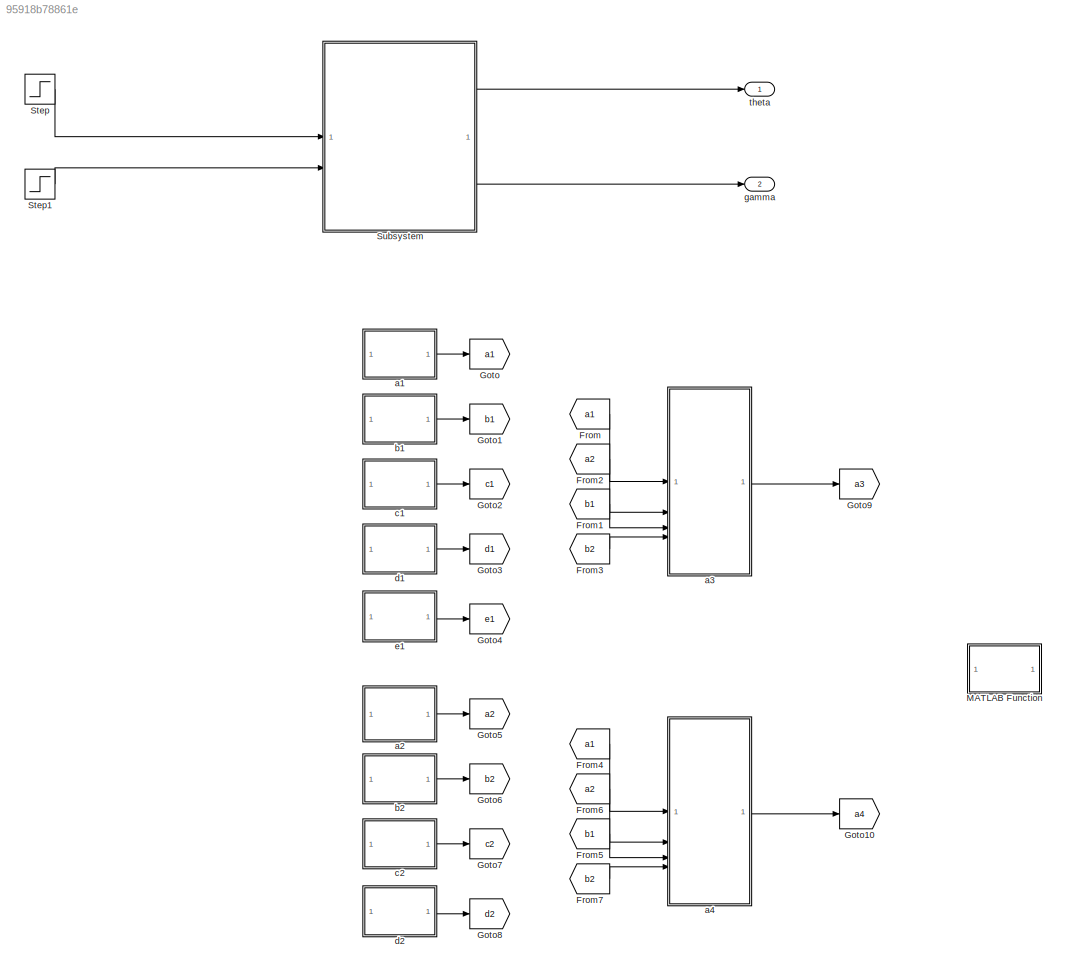
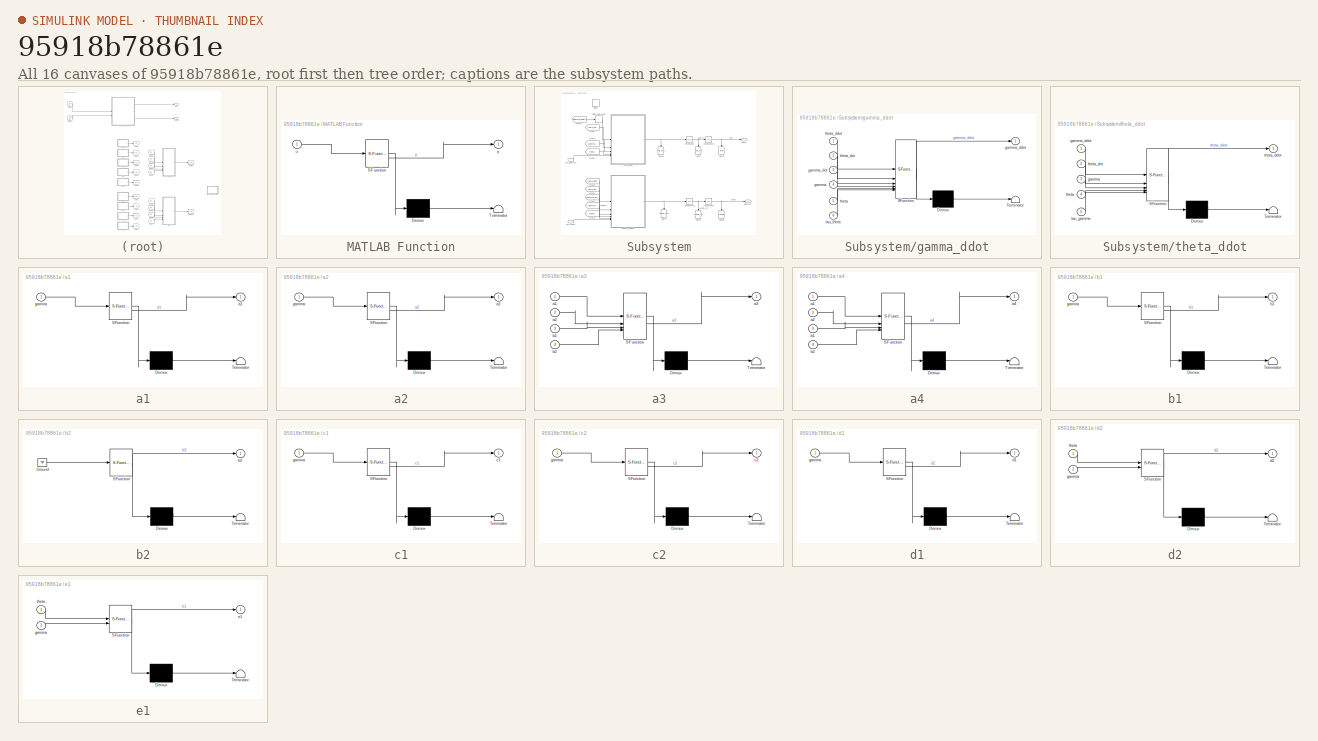
[diagram: thumbnail index - all 16 canvases of the model, root first then tree order]
MODEL slx_95918b78861e
KIND model
CONFIG AbsTol = auto
CONFIG EnableMultiTasking = off
CONFIG FixedStep = auto
CONFIG MaxStep = auto
CONFIG MinStep = auto
CONFIG RelTol = 1e-3
CONFIG SampleTimeConstraint = Unconstrained
CONFIG SolverName = ode45
CONFIG StartTime = 0.0
CONFIG StopTime = 10.0
BLOCK [From] From
  GotoTag = a1
BLOCK [From] From1
  GotoTag = b1
BLOCK [From] From2
  GotoTag = a2
BLOCK [From] From3
  GotoTag = b2
BLOCK [From] From4
  GotoTag = a1
BLOCK [From] From5
  GotoTag = b1
BLOCK [From] From6
  GotoTag = a2
BLOCK [From] From7
  GotoTag = b2
BLOCK [Goto] Goto
  GotoTag = a1
BLOCK [Goto] Goto1
  GotoTag = b1
BLOCK [Goto] Goto10
  GotoTag = a4
BLOCK [Goto] Goto2
  GotoTag = c1
BLOCK [Goto] Goto3
  GotoTag = d1
BLOCK [Goto] Goto4
  GotoTag = e1
BLOCK [Goto] Goto5
  GotoTag = a2
BLOCK [Goto] Goto6
  GotoTag = b2
BLOCK [Goto] Goto7
  GotoTag = c2
BLOCK [Goto] Goto8
  GotoTag = d2
BLOCK [Goto] Goto9
  GotoTag = a3
BLOCK [SubSystem] MATLAB Function
  ErrorFcn = Stateflow.Translate.translate
  LibrarySourceBlock = simulink/User-Defined\nFunctions/MATLAB Function
  PermitHierarchicalResolution = ExplicitOnly
  SFBlockType = MATLAB Function
  TreatAsAtomicUnit = on
BLOCK [Demux] MATLAB Function/ Demux 
  Outputs = 1
BLOCK [S-Function] MATLAB Function/ SFunction 
  EnableBusSupport = off
  FunctionName = sf_sfun
  PortCounts = [1 2]
  SFcnIsStateOwnerBlock = off
  SFunctionDeploymentMode = off
  Tag = Stateflow S-Function 14
BLOCK [Terminator] MATLAB Function/ Terminator 
BLOCK [Inport] MATLAB Function/u
BLOCK [Outport] MATLAB Function/y
BLOCK [Step] Step
  After = -1
  Commented = on
  SampleTime = 0
BLOCK [Step] Step1
  Commented = on
  SampleTime = 0
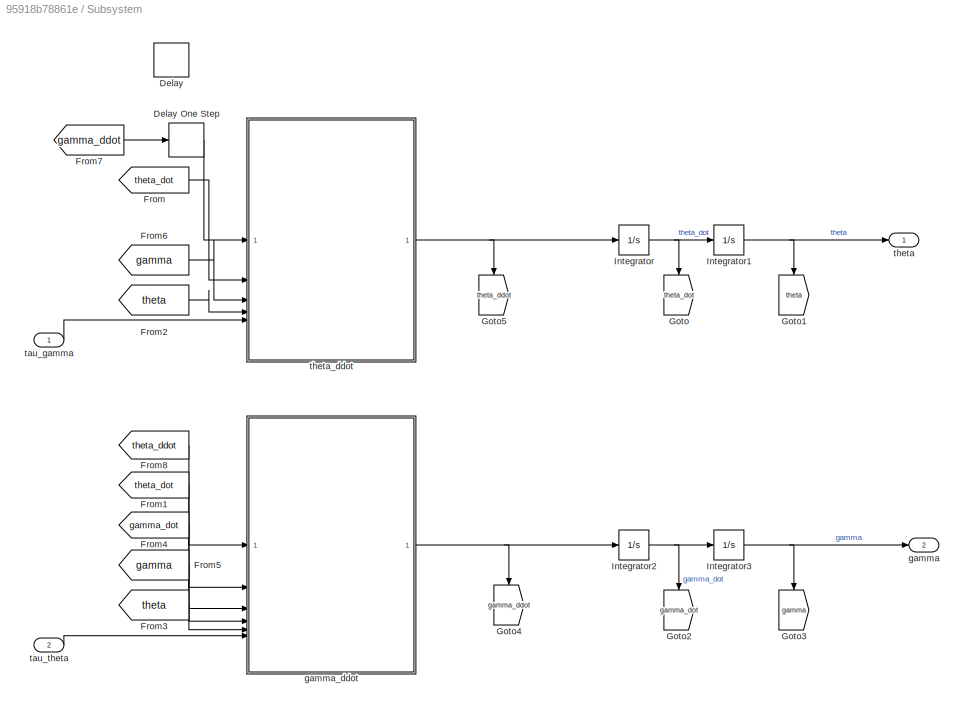
BLOCK [SubSystem] Subsystem
  Commented = on
BLOCK [Delay] Subsystem/Delay
  Commented = through
  InputPortMap = u0
BLOCK [Delay] Subsystem/Delay One Step
  Commented = through
  DelayLength = 1
  InputPortMap = u0
BLOCK [From] Subsystem/From
  GotoTag = theta_dot
BLOCK [From] Subsystem/From1
  GotoTag = theta_dot
BLOCK [From] Subsystem/From2
  GotoTag = theta
BLOCK [From] Subsystem/From3
  GotoTag = theta
BLOCK [From] Subsystem/From4
  GotoTag = gamma_dot
BLOCK [From] Subsystem/From5
  GotoTag = gamma
BLOCK [From] Subsystem/From6
  GotoTag = gamma
BLOCK [From] Subsystem/From7
  GotoTag = gamma_ddot
BLOCK [From] Subsystem/From8
  GotoTag = theta_ddot
BLOCK [Goto] Subsystem/Goto
  GotoTag = theta_dot
  NameLocation = left
BLOCK [Goto] Subsystem/Goto1
  GotoTag = theta
  NameLocation = left
BLOCK [Goto] Subsystem/Goto2
  GotoTag = gamma_dot
  NameLocation = left
BLOCK [Goto] Subsystem/Goto3
  GotoTag = gamma
  NameLocation = left
BLOCK [Goto] Subsystem/Goto4
  GotoTag = gamma_ddot
  NameLocation = left
BLOCK [Goto] Subsystem/Goto5
  GotoTag = theta_ddot
  NameLocation = left
BLOCK [Integrator] Subsystem/Integrator
  Commented = through
  ContinuousStateAttributes = 'theta_dot'
BLOCK [Integrator] Subsystem/Integrator1
  Commented = through
  ContinuousStateAttributes = 'theta'
  LowerSaturationLimit = -pi/3
  UpperSaturationLimit = 2*pi/9
BLOCK [Integrator] Subsystem/Integrator2
  Commented = through
  ContinuousStateAttributes = 'gamma_dot'
BLOCK [Integrator] Subsystem/Integrator3
  Commented = through
  ContinuousStateAttributes = 'gamma'
  LowerSaturationLimit = -pi/3
  UpperSaturationLimit = 2*pi/9
BLOCK [Outport] Subsystem/gamma
  Port = 2
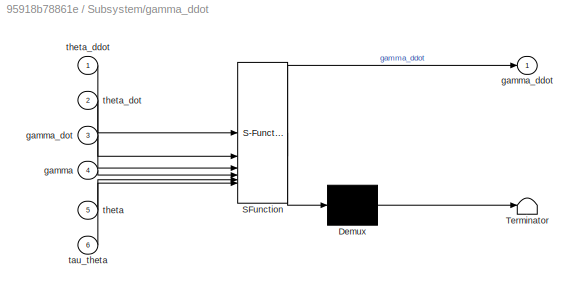
BLOCK [SubSystem] Subsystem/gamma_ddot
  ErrorFcn = Stateflow.Translate.translate
  LibrarySourceBlock = simulink/User-Defined\nFunctions/MATLAB Function
  PermitHierarchicalResolution = ExplicitOnly
  SFBlockType = MATLAB Function
  TreatAsAtomicUnit = on
BLOCK [Demux] Subsystem/gamma_ddot/ Demux 
  Outputs = 1
BLOCK [S-Function] Subsystem/gamma_ddot/ SFunction 
  EnableBusSupport = on
  FunctionName = sf_sfun
  PortCounts = [6 2]
  SFcnIsStateOwnerBlock = off
  SFunctionDeploymentMode = off
  Tag = Stateflow S-Function 1
BLOCK [Terminator] Subsystem/gamma_ddot/ Terminator 
BLOCK [Inport] Subsystem/gamma_ddot/gamma
  Port = 4
BLOCK [Outport] Subsystem/gamma_ddot/gamma_ddot
BLOCK [Inport] Subsystem/gamma_ddot/gamma_dot
  Port = 3
BLOCK [Inport] Subsystem/gamma_ddot/tau_theta
  Port = 6
BLOCK [Inport] Subsystem/gamma_ddot/theta
  Port = 5
BLOCK [Inport] Subsystem/gamma_ddot/theta_ddot
BLOCK [Inport] Subsystem/gamma_ddot/theta_dot
  Port = 2
BLOCK [Inport] Subsystem/tau_gamma
BLOCK [Inport] Subsystem/tau_theta
  Port = 2
BLOCK [Outport] Subsystem/theta
BLOCK [SubSystem] Subsystem/theta_ddot
  ErrorFcn = Stateflow.Translate.translate
  LibrarySourceBlock = simulink/User-Defined\nFunctions/MATLAB Function
  PermitHierarchicalResolution = ExplicitOnly
  SFBlockType = MATLAB Function
  TreatAsAtomicUnit = on
BLOCK [Demux] Subsystem/theta_ddot/ Demux 
  Outputs = 1
BLOCK [S-Function] Subsystem/theta_ddot/ SFunction 
  EnableBusSupport = on
  FunctionName = sf_sfun
  PortCounts = [5 2]
  SFcnIsStateOwnerBlock = off
  SFunctionDeploymentMode = off
  Tag = Stateflow S-Function 2
BLOCK [Terminator] Subsystem/theta_ddot/ Terminator 
BLOCK [Inport] Subsystem/theta_ddot/gamma
  Port = 3
BLOCK [Inport] Subsystem/theta_ddot/gamma_ddot
BLOCK [Inport] Subsystem/theta_ddot/tau_gamma
  Port = 5
BLOCK [Inport] Subsystem/theta_ddot/theta
  Port = 4
BLOCK [Outport] Subsystem/theta_ddot/theta_ddot
BLOCK [Inport] Subsystem/theta_ddot/theta_dot
  Port = 2
BLOCK [SubSystem] a1
  ErrorFcn = Stateflow.Translate.translate
  LibrarySourceBlock = simulink/User-Defined\nFunctions/MATLAB Function
  PermitHierarchicalResolution = ExplicitOnly
  SFBlockType = MATLAB Function
  TreatAsAtomicUnit = on
BLOCK [Demux] a1/ Demux 
  Outputs = 1
BLOCK [S-Function] a1/ SFunction 
  EnableBusSupport = on
  FunctionName = sf_sfun
  PortCounts = [1 2]
  SFcnIsStateOwnerBlock = off
  SFunctionDeploymentMode = off
  Tag = Stateflow S-Function 3
BLOCK [Terminator] a1/ Terminator 
BLOCK [Outport] a1/a1
BLOCK [Inport] a1/gamma
BLOCK [SubSystem] a2
  ErrorFcn = Stateflow.Translate.translate
  LibrarySourceBlock = simulink/User-Defined\nFunctions/MATLAB Function
  PermitHierarchicalResolution = ExplicitOnly
  SFBlockType = MATLAB Function
  TreatAsAtomicUnit = on
BLOCK [Demux] a2/ Demux 
  Outputs = 1
BLOCK [S-Function] a2/ SFunction 
  EnableBusSupport = on
  FunctionName = sf_sfun
  PortCounts = [1 2]
  SFcnIsStateOwnerBlock = off
  SFunctionDeploymentMode = off
  Tag = Stateflow S-Function 8
BLOCK [Terminator] a2/ Terminator 
BLOCK [Outport] a2/a2
BLOCK [Inport] a2/gamma
BLOCK [SubSystem] a3
  ErrorFcn = Stateflow.Translate.translate
  LibrarySourceBlock = simulink/User-Defined\nFunctions/MATLAB Function
  PermitHierarchicalResolution = ExplicitOnly
  SFBlockType = MATLAB Function
  TreatAsAtomicUnit = on
BLOCK [Demux] a3/ Demux 
  Outputs = 1
BLOCK [S-Function] a3/ SFunction 
  EnableBusSupport = off
  FunctionName = sf_sfun
  PortCounts = [4 2]
  SFcnIsStateOwnerBlock = off
  SFunctionDeploymentMode = off
  Tag = Stateflow S-Function 12
BLOCK [Terminator] a3/ Terminator 
BLOCK [Inport] a3/a1
BLOCK [Inport] a3/a2
  Port = 2
BLOCK [Outport] a3/a3
BLOCK [Inport] a3/b1
  Port = 3
BLOCK [Inport] a3/b2
  Port = 4
BLOCK [SubSystem] a4
  ErrorFcn = Stateflow.Translate.translate
  LibrarySourceBlock = simulink/User-Defined\nFunctions/MATLAB Function
  PermitHierarchicalResolution = ExplicitOnly
  SFBlockType = MATLAB Function
  TreatAsAtomicUnit = on
BLOCK [Demux] a4/ Demux 
  Outputs = 1
BLOCK [S-Function] a4/ SFunction 
  EnableBusSupport = off
  FunctionName = sf_sfun
  PortCounts = [4 2]
  SFcnIsStateOwnerBlock = off
  SFunctionDeploymentMode = off
  Tag = Stateflow S-Function 13
BLOCK [Terminator] a4/ Terminator 
BLOCK [Inport] a4/a1
BLOCK [Inport] a4/a2
  Port = 2
BLOCK [Outport] a4/a4
BLOCK [Inport] a4/b1
  Port = 3
BLOCK [Inport] a4/b2
  Port = 4
BLOCK [SubSystem] b1
  ErrorFcn = Stateflow.Translate.translate
  LibrarySourceBlock = simulink/User-Defined\nFunctions/MATLAB Function
  PermitHierarchicalResolution = ExplicitOnly
  SFBlockType = MATLAB Function
  TreatAsAtomicUnit = on
BLOCK [Demux] b1/ Demux 
  Outputs = 1
BLOCK [S-Function] b1/ SFunction 
  EnableBusSupport = on
  FunctionName = sf_sfun
  PortCounts = [1 2]
  SFcnIsStateOwnerBlock = off
  SFunctionDeploymentMode = off
  Tag = Stateflow S-Function 4
BLOCK [Terminator] b1/ Terminator 
BLOCK [Outport] b1/b1
BLOCK [Inport] b1/gamma
BLOCK [SubSystem] b2
  ErrorFcn = Stateflow.Translate.translate
  LibrarySourceBlock = simulink/User-Defined\nFunctions/MATLAB Function
  PermitHierarchicalResolution = ExplicitOnly
  SFBlockType = MATLAB Function
  TreatAsAtomicUnit = on
BLOCK [Demux] b2/ Demux 
  Outputs = 1
BLOCK [Ground] b2/ Ground 
BLOCK [S-Function] b2/ SFunction 
  EnableBusSupport = on
  FunctionName = sf_sfun
  PortCounts = [1 2]
  SFcnIsStateOwnerBlock = off
  SFunctionDeploymentMode = off
  Tag = Stateflow S-Function 9
BLOCK [Terminator] b2/ Terminator 
BLOCK [Outport] b2/b2
BLOCK [SubSystem] c1
  ErrorFcn = Stateflow.Translate.translate
  LibrarySourceBlock = simulink/User-Defined\nFunctions/MATLAB Function
  PermitHierarchicalResolution = ExplicitOnly
  SFBlockType = MATLAB Function
  TreatAsAtomicUnit = on
BLOCK [Demux] c1/ Demux 
  Outputs = 1
BLOCK [S-Function] c1/ SFunction 
  EnableBusSupport = on
  FunctionName = sf_sfun
  PortCounts = [1 2]
  SFcnIsStateOwnerBlock = off
  SFunctionDeploymentMode = off
  Tag = Stateflow S-Function 5
BLOCK [Terminator] c1/ Terminator 
BLOCK [Outport] c1/c1
BLOCK [Inport] c1/gamma
BLOCK [SubSystem] c2
  ErrorFcn = Stateflow.Translate.translate
  LibrarySourceBlock = simulink/User-Defined\nFunctions/MATLAB Function
  PermitHierarchicalResolution = ExplicitOnly
  SFBlockType = MATLAB Function
  TreatAsAtomicUnit = on
BLOCK [Demux] c2/ Demux 
  Outputs = 1
BLOCK [S-Function] c2/ SFunction 
  EnableBusSupport = on
  FunctionName = sf_sfun
  PortCounts = [1 2]
  SFcnIsStateOwnerBlock = off
  SFunctionDeploymentMode = off
  Tag = Stateflow S-Function 10
BLOCK [Terminator] c2/ Terminator 
BLOCK [Outport] c2/c2
BLOCK [Inport] c2/gamma
BLOCK [SubSystem] d1
  ErrorFcn = Stateflow.Translate.translate
  LibrarySourceBlock = simulink/User-Defined\nFunctions/MATLAB Function
  PermitHierarchicalResolution = ExplicitOnly
  SFBlockType = MATLAB Function
  TreatAsAtomicUnit = on
BLOCK [Demux] d1/ Demux 
  Outputs = 1
BLOCK [S-Function] d1/ SFunction 
  EnableBusSupport = on
  FunctionName = sf_sfun
  PortCounts = [1 2]
  SFcnIsStateOwnerBlock = off
  SFunctionDeploymentMode = off
  Tag = Stateflow S-Function 6
BLOCK [Terminator] d1/ Terminator 
BLOCK [Outport] d1/d1
BLOCK [Inport] d1/gamma
BLOCK [SubSystem] d2
  ErrorFcn = Stateflow.Translate.translate
  LibrarySourceBlock = simulink/User-Defined\nFunctions/MATLAB Function
  PermitHierarchicalResolution = ExplicitOnly
  SFBlockType = MATLAB Function
  TreatAsAtomicUnit = on
BLOCK [Demux] d2/ Demux 
  Outputs = 1
BLOCK [S-Function] d2/ SFunction 
  EnableBusSupport = on
  FunctionName = sf_sfun
  PortCounts = [2 2]
  SFcnIsStateOwnerBlock = off
  SFunctionDeploymentMode = off
  Tag = Stateflow S-Function 11
BLOCK [Terminator] d2/ Terminator 
BLOCK [Outport] d2/d2
BLOCK [Inport] d2/gamma
  Port = 2
BLOCK [Inport] d2/theta
BLOCK [SubSystem] e1
  ErrorFcn = Stateflow.Translate.translate
  LibrarySourceBlock = simulink/User-Defined\nFunctions/MATLAB Function
  PermitHierarchicalResolution = ExplicitOnly
  SFBlockType = MATLAB Function
  TreatAsAtomicUnit = on
BLOCK [Demux] e1/ Demux 
  Outputs = 1
BLOCK [S-Function] e1/ SFunction 
  EnableBusSupport = on
  FunctionName = sf_sfun
  PortCounts = [2 2]
  SFcnIsStateOwnerBlock = off
  SFunctionDeploymentMode = off
  Tag = Stateflow S-Function 7
BLOCK [Terminator] e1/ Terminator 
BLOCK [Outport] e1/e1
BLOCK [Inport] e1/gamma
  Port = 2
BLOCK [Inport] e1/theta
BLOCK [Outport] gamma
  Port = 2
BLOCK [Outport] theta
LINE From1:1 -> a3:3
LINE From2:1 -> a3:2
LINE From3:1 -> a3:4
LINE From4:1 -> a4:1
LINE From5:1 -> a4:3
LINE From6:1 -> a4:2
LINE From7:1 -> a4:4
LINE From:1 -> a3:1
LINE Step1:1 -> Subsystem:2
LINE Step:1 -> Subsystem:1
LINE Subsystem/Delay One Step:1 -> Subsystem/theta_ddot:1
LINE Subsystem/From1:1 -> Subsystem/gamma_ddot:2
LINE Subsystem/From2:1 -> Subsystem/theta_ddot:4
LINE Subsystem/From3:1 -> Subsystem/gamma_ddot:5
LINE Subsystem/From4:1 -> Subsystem/gamma_ddot:3
LINE Subsystem/From5:1 -> Subsystem/gamma_ddot:4
LINE Subsystem/From6:1 -> Subsystem/theta_ddot:3
LINE Subsystem/From7:1 -> Subsystem/Delay One Step:1
LINE Subsystem/From8:1 -> Subsystem/gamma_ddot:1
LINE Subsystem/From:1 -> Subsystem/theta_ddot:2
NET Subsystem/Integrator1:1 -> Subsystem/Goto1:1, Subsystem/theta:1
NET Subsystem/Integrator2:1 -> Subsystem/Goto2:1, Subsystem/Integrator3:1
NET Subsystem/Integrator3:1 -> Subsystem/Goto3:1, Subsystem/gamma:1
NET Subsystem/Integrator:1 -> Subsystem/Goto:1, Subsystem/Integrator1:1
NET Subsystem/gamma_ddot:1 -> Subsystem/Goto4:1, Subsystem/Integrator2:1
LINE Subsystem/tau_gamma:1 -> Subsystem/theta_ddot:5
LINE Subsystem/tau_theta:1 -> Subsystem/gamma_ddot:6
NET Subsystem/theta_ddot:1 -> Subsystem/Goto5:1, Subsystem/Integrator:1
LINE Subsystem:1 -> theta:1
LINE Subsystem:2 -> gamma:1
LINE a1:1 -> Goto:1
LINE a2:1 -> Goto5:1
LINE a3:1 -> Goto9:1
LINE a4:1 -> Goto10:1
LINE b1:1 -> Goto1:1
LINE b2:1 -> Goto6:1
LINE c1:1 -> Goto2:1
LINE c2:1 -> Goto7:1
LINE d1:1 -> Goto3:1
LINE d2:1 -> Goto8:1
LINE e1:1 -> Goto4:1
note: NET lines group one-source signal fan-out (src -> all destinations, sorted); 1:1 wires keep LINE
CHART a3 states=1 transitions=1
  STATE_LABEL 'eML_blk_kernel()'
  STATE_LABEL 'SCRIPT:\nfunction a3 = a3(a1,a2,b1,b2)\n\na3 = (b1/(a2*b1-a1*b2));\n'
CHART a4 states=1 transitions=1
  STATE_LABEL 'eML_blk_kernel()'
  STATE_LABEL 'SCRIPT:\nfunction a4 = a4(a1,a2,b1,b2)\n\na4 = (b2/(a2*b1-a1*b2));\n'
CHART MATLAB Function states=1 transitions=1
  STATE_LABEL 'eML_blk_kernel()'
  STATE_LABEL 'SCRIPT:\nfunction y = fcn(u)\n\ny = u;\n'
CHART Subsystem/gamma_ddot states=1 transitions=1
  STATE_LABEL 'eML_blk_kernel()'
  STATE_LABEL 'SCRIPT:\nfunction gamma_ddot  = fcn(theta_ddot, theta_dot, gamma_dot, gamma, theta, tau_theta)\nI_hy = 0.0001;\nI_by = 0.0001;\nl_h = 0.035;\nl_b = 0.030;\nm_h = 0.0049;\ng = 9.8;\n\ngamma_ddot = (tau_theta - ((I_hy+I_by+((l_b^2+l_h^2)*m_h+ 2*l_b*l_h*m_h*cos(gamma))*theta_ddot + (g*(l_h*m_h*sin(gamma - theta)-l_b*m_h*sin(theta))) + (2*l_h^2*m_h*cos(2*gamma) + l_b*l_h*m_h*cos(gamma))*gamma_dot^2 - 2*l_b*l_h...<+93ch>'
CHART Subsystem/theta_ddot states=1 transitions=1
  STATE_LABEL 'eML_blk_kernel()'
  STATE_LABEL 'SCRIPT:\nfunction theta_ddot  = fcn(gamma_ddot, theta_dot, gamma, theta, tau_gamma)\nI_hy = 0.0001;\nl_h = 0.035;\nl_b = 0.030;\nm_h = 0.0049;\ng = 9.8;\ntheta_ddot = (tau_gamma - ((I_hy + l_h^2*m_h)*gamma_ddot + (g*l_h*m_h*cos(gamma + theta)) + l_b*l_h*m_h*sin(gamma)*theta_dot^2 ))/ (I_hy+l_h^2*m_h*sin(2*gamma) + l_b*l_h*m_h*sin(gamma));'
CHART a1 states=1 transitions=1
  STATE_LABEL 'eML_blk_kernel()'
  STATE_LABEL 'SCRIPT:\nfunction a1 = a1(gamma)\n\na1 = I_hy+I_by+(l_b^2+l_h^2)*m_h+ 2*l_b*l_h*m_h*cos(gamma);\n'
CHART b1 states=1 transitions=1
  STATE_LABEL 'eML_blk_kernel()'
  STATE_LABEL 'SCRIPT:\nfunction b1 = b1(gamma)\n\nb1 = I_hy+l_h^2*m_h*sin(2*gamma)+l_b*l_h*m_h*sin(gamma);\n'
CHART c1 states=1 transitions=1
  STATE_LABEL 'eML_blk_kernel()'
  STATE_LABEL 'SCRIPT:\nfunction c1 = c1(gamma)\n\nc1 = 2*l_h^2*m_h*cos(2*gamma) + l_b*l_h*m_h*cos(gamma);\n'
CHART d1 states=1 transitions=1
  STATE_LABEL 'eML_blk_kernel()'
  STATE_LABEL 'SCRIPT:\nfunction d1 = d1(gamma)\n\nd1 = - 2*l_b*l_h *m_h*sin(gamma);\n'
CHART e1 states=1 transitions=1
  STATE_LABEL 'eML_blk_kernel()'
  STATE_LABEL 'SCRIPT:\nfunction e1 = e1(theta, gamma)\n\ne1 = l_h*m_h*sin(gamma - theta)-l_b*m_h*sin(theta);\n'
CHART a2 states=1 transitions=1
  STATE_LABEL 'eML_blk_kernel()'
  STATE_LABEL 'SCRIPT:\nfunction a2 = a2(gamma)\n\na2 = I_hy+l_h^2*m_h*sin(2*gamma) + l_b*l_h*m_h*sin(gamma);\n'
CHART b2 states=1 transitions=1
  STATE_LABEL 'eML_blk_kernel()'
  STATE_LABEL 'SCRIPT:\nfunction b2 = b2()\n\nb2 = I_hy + l_h^2*m_h;\n'
CHART c2 states=1 transitions=1
  STATE_LABEL 'eML_blk_kernel()'
  STATE_LABEL 'SCRIPT:\nfunction c2 = c2(gamma)\n\nc2 = l_b*l_h*m_h*sin(gamma);\n'
CHART d2 states=1 transitions=1
  STATE_LABEL 'eML_blk_kernel()'
  STATE_LABEL 'SCRIPT:\nfunction d2 = d2(theta, gamma)\n\nd2 = l_h*m_h*cos(gamma + theta);\n'
CHART  states=0 transitions=0
CHART  states=0 transitions=0
CHART  states=0 transitions=0
CHART  states=0 transitions=0
CHART  states=0 transitions=0
CHART  states=0 transitions=0
CHART  states=0 transitions=0
CHART  states=0 transitions=0
CHART  states=0 transitions=0
CHART  states=0 transitions=0
CHART  states=0 transitions=0
CHART  states=0 transitions=0
CHART  states=0 transitions=0
CHART  states=0 transitions=0
